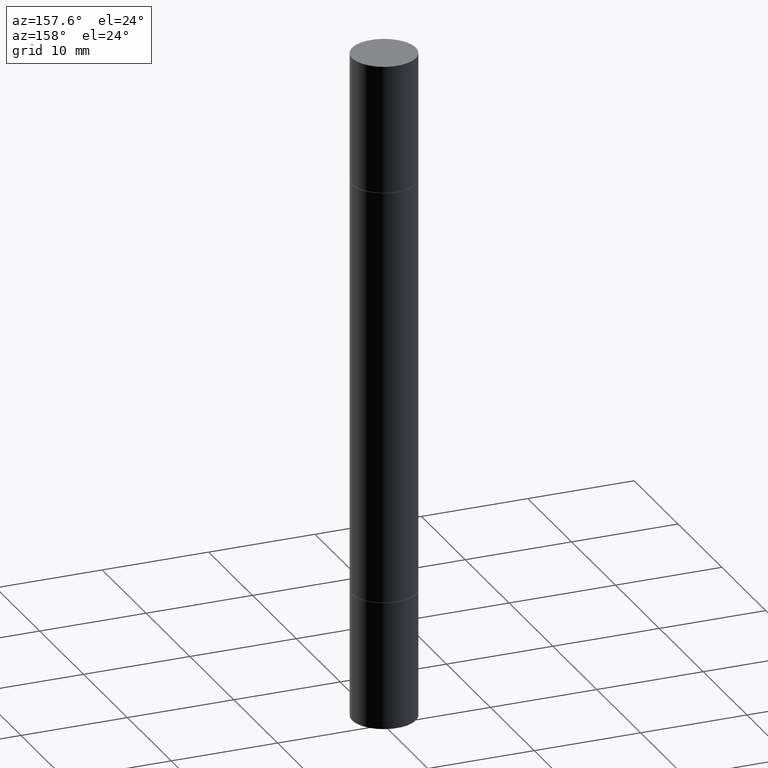
[diagram: clean part render]
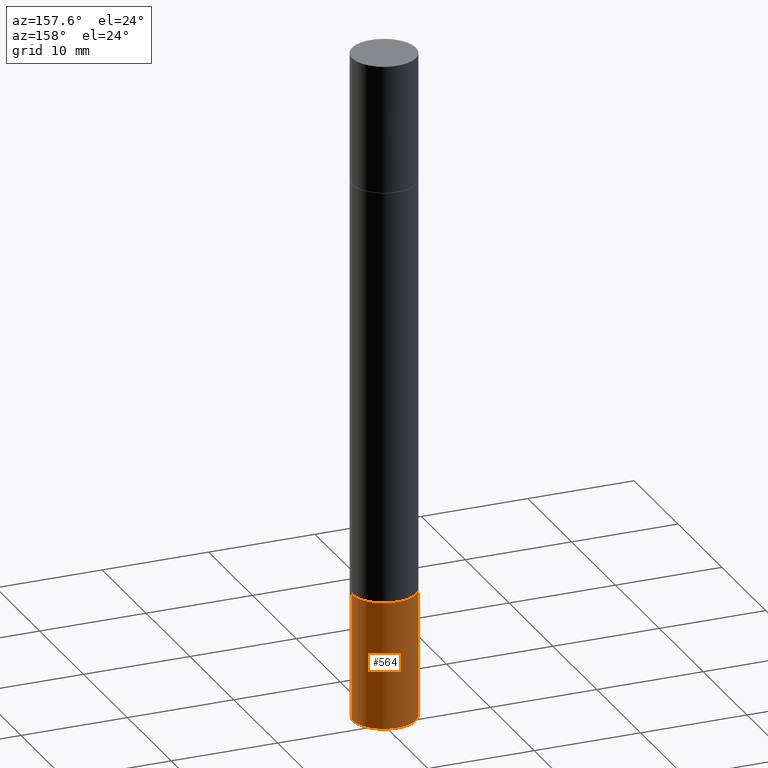
[diagram: same view with one face highlighted and labeled with its STEP entity id]
A machine part, auxiliary view. The second image highlights one B-rep face of the part: STEP entity #564.
In plain terms, the highlighted cylindrical surface (edge-blend (fillet) strip) has radius 2.9997 mm, axis along (-0, 0, 1).
Its self-contained STEP definition (entity closure, byte-faithful):
#9 = VERTEX_POINT ( 'NONE', #351 ) ;
#17 = VECTOR ( 'NONE', #569, 39.37007874015748143 ) ;
#33 = CARTESIAN_POINT ( 'NONE',  ( 0.1180999999999999966, -7.835233272497900762E-15, -2.007900000000000240 ) ) ;
#46 = DIRECTION ( 'NONE',  ( 1.000000000000000000, -6.982962677686265133E-15, 0.000000000000000000 ) ) ;
#93 = CIRCLE ( 'NONE', #536, 0.1180999999999999966 ) ;
#108 = LINE ( 'NONE', #355, #17 ) ;
#118 = ORIENTED_EDGE ( 'NONE', *, *, #251, .F. ) ;
#136 = VECTOR ( 'NONE', #616, 39.37007874015748143 ) ;
#162 = ORIENTED_EDGE ( 'NONE', *, *, #384, .T. ) ;
#185 = AXIS2_PLACEMENT_3D ( 'NONE', #196, #517, #455 ) ;
#190 = EDGE_CURVE ( 'NONE', #424, #9, #558, .T. ) ;
#195 = LINE ( 'NONE', #399, #136 ) ;
#196 = CARTESIAN_POINT ( 'NONE',  ( 0.000000000000000000, 0.000000000000000000, 0.000000000000000000 ) ) ;
#207 = CYLINDRICAL_SURFACE ( 'NONE', #185, 0.1180999999999999966 ) ;
#235 = VERTEX_POINT ( 'NONE', #33 ) ;
#251 = EDGE_CURVE ( 'NONE', #424, #235, #195, .T. ) ;
#261 = CARTESIAN_POINT ( 'NONE',  ( 4.910256815939136430E-29, -7.010545380263152499E-15, -2.007900000000000240 ) ) ;
#267 = AXIS2_PLACEMENT_3D ( 'NONE', #389, #604, #339 ) ;
#339 = DIRECTION ( 'NONE',  ( 1.000000000000000000, -6.982962677686273021E-15, 0.000000000000000000 ) ) ;
#351 = CARTESIAN_POINT ( 'NONE',  ( -0.1180999999999999966, -6.996082301565225720E-15, -2.480300000000000171 ) ) ;
#355 = CARTESIAN_POINT ( 'NONE',  ( -0.1180999999999999966, 8.391509709326782957E-16, -5.809262341591043784E-30 ) ) ;
#364 = CARTESIAN_POINT ( 'NONE',  ( 0.1180999999999999966, -9.484609056967403598E-15, -2.480300000000000171 ) ) ;
#371 = EDGE_CURVE ( 'NONE', #235, #409, #93, .T. ) ;
#384 = EDGE_CURVE ( 'NONE', #9, #409, #108, .T. ) ;
#389 = CARTESIAN_POINT ( 'NONE',  ( 6.065496279980994755E-29, -8.659921164732655335E-15, -2.480300000000000171 ) ) ;
#399 = CARTESIAN_POINT ( 'NONE',  ( 0.1180999999999999966, -8.246878922347480654E-16, 5.758764772215000440E-30 ) ) ;
#409 = VERTEX_POINT ( 'NONE', #463 ) ;
#412 = DIRECTION ( 'NONE',  ( -2.445468806185136597E-29, 3.491481338843145583E-15, 1.000000000000000000 ) ) ;
#424 = VERTEX_POINT ( 'NONE', #364 ) ;
#451 = FACE_OUTER_BOUND ( 'NONE', #488, .T. ) ;
#455 = DIRECTION ( 'NONE',  ( 1.000000000000000000, -6.982962677686266711E-15, 4.876176775795936353E-29 ) ) ;
#463 = CARTESIAN_POINT ( 'NONE',  ( -0.1180999999999999966, -6.996082301565225720E-15, -2.007900000000000240 ) ) ;
#468 = ORIENTED_EDGE ( 'NONE', *, *, #371, .F. ) ;
#488 = EDGE_LOOP ( 'NONE', ( #656, #162, #468, #118 ) ) ;
#517 = DIRECTION ( 'NONE',  ( -2.445468806185136597E-29, 3.491481338843145583E-15, 1.000000000000000000 ) ) ;
#536 = AXIS2_PLACEMENT_3D ( 'NONE', #261, #412, #46 ) ;
#558 = CIRCLE ( 'NONE', #267, 0.1180999999999999966 ) ;
#564 = ADVANCED_FACE ( 'NONE', ( #451 ), #207, .T. ) ;
#569 = DIRECTION ( 'NONE',  ( -2.445468806185136877E-29, 3.491481338843145188E-15, 1.000000000000000000 ) ) ;
#604 = DIRECTION ( 'NONE',  ( -2.445468806185136597E-29, 3.491481338843145583E-15, 1.000000000000000000 ) ) ;
#616 = DIRECTION ( 'NONE',  ( -2.445468806185136877E-29, 3.491481338843145188E-15, 1.000000000000000000 ) ) ;
#656 = ORIENTED_EDGE ( 'NONE', *, *, #190, .T. ) ;